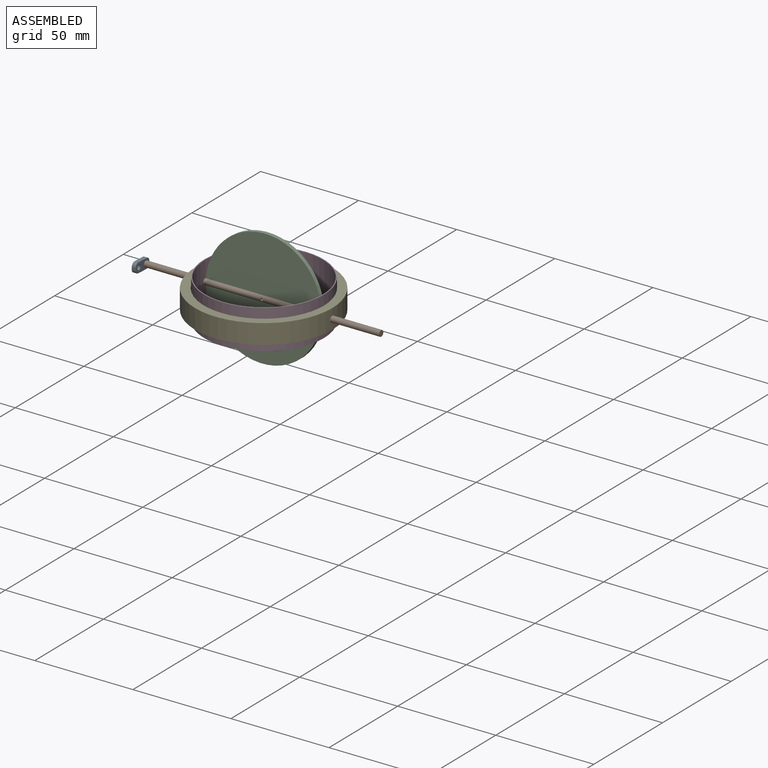
[diagram: assembled view]
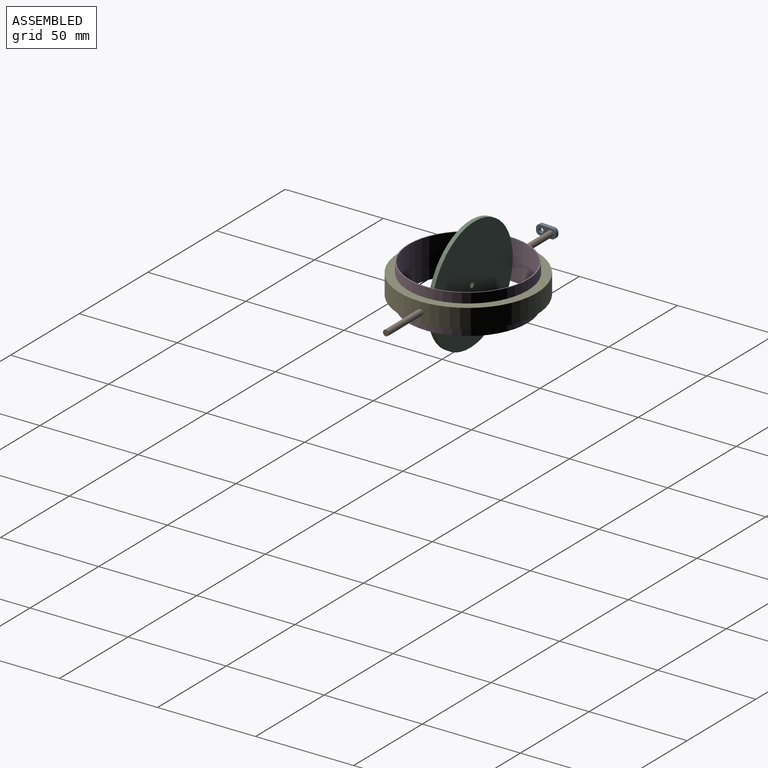
[diagram: assembled view, second angle]
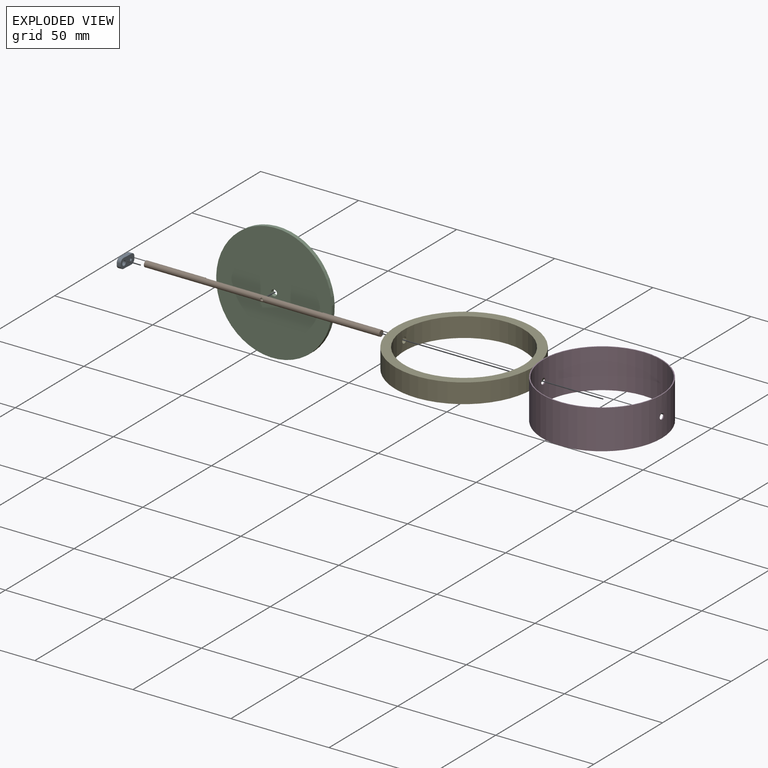
[diagram: exploded view]
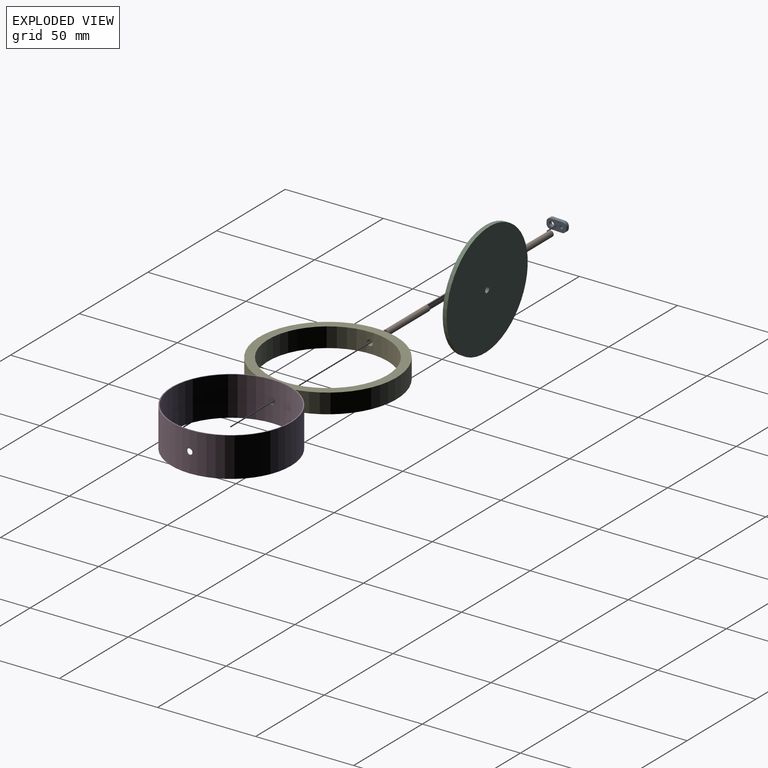
[diagram: exploded view, second angle]
ASSEMBLY  parts=5 mates=4
PART A: 12 faces, bbox 10x5x2 mm
  f0: plane 2x1mm, normal (1,0,0), area 2mm2, adj f1,f9,f10,f11
  f1: cylinder r=2mm len=2mm, axis (0,0,-1), area 6.3mm2, adj f0,f2,f10,f11
  f2: plane 6x2mm, normal (0,1,0), area 12mm2, adj f1,f3,f10,f11
  f3: cylinder r=2mm len=2mm, axis (0,0,-1), area 6.3mm2, adj f2,f4,f10,f11
  f4: plane 2x1mm, normal (-1,0,0), area 2mm2, adj f3,f5,f10,f11
  f5: cylinder r=2mm len=2mm, axis (0,0,-1), area 6.3mm2, adj f4,f6,f10,f11
  f6: plane 6x2mm, normal (0,-1,0), area 12mm2, adj f5,f9,f10,f11
  f7: cylinder r=1.25mm len=2.5mm, axis (0,0,-1), area 15.7mm2, adj f10,f11
  f8: cylinder r=0.75mm len=2mm, axis (0,0,-1), area 9.4mm2, adj f10,f11
  f9: cylinder r=2mm len=2mm, axis (0,0,-1), area 6.3mm2, adj f0,f6,f10,f11
  f10: plane 10x5mm, normal (0,0,1), area 39.9mm2, adj f0,f1,f2,f3,f4,f5,f6,f7
  f11: plane 10x5mm, normal (0,0,-1), area 39.9mm2, adj f0,f1,f2,f3,f4,f5,f6,f7
PART B: 9 faces, bbox 3x3x120 mm
  f0: cylinder r=1.5mm len=120mm, axis (0,0,-1), area 846.4mm2, adj f1,f2,f5,f6,f7,f8
  f1: plane 3x3mm, normal (0,0,1), area 5.3mm2, adj f0,f4
  f2: plane 3x3mm, normal (0,0,-1), area 7.1mm2, adj f0
  f3: cone r=0mm half-angle=59deg, axis (0,0,1), area 2.1mm2, adj f4
  f4: cylinder r=0.75mm len=3mm, axis (0,0,1), area 14.1mm2, adj f1,f3
  f5: plane 60x3mm, normal (1,0,0), area 178.2mm2, adj f0,f6,f7,f8
  f6: plane 3x1.5mm, normal (0,0,1), area 3.5mm2, adj f0,f5
  f7: plane 3x1.5mm, normal (0,0,-1), area 3.5mm2, adj f0,f5
  f8: cylinder r=0.75mm len=1.5mm, axis (1,0,0), area 6.6mm2, adj f0,f5
PART C: 4 faces, bbox 59x59x2 mm
  f0: cylinder r=29.5mm len=59mm, axis (0,0,-1), area 370.7mm2, adj f1,f2
  f1: plane 59x59mm, normal (0,0,1), area 2726.9mm2, adj f0,f3
  f2: plane 59x59mm, normal (0,0,-1), area 2726.9mm2, adj f0,f3
  f3: cylinder r=1.5mm len=3mm, axis (0,0,-1), area 18.8mm2, adj f1,f2
PART D: 6 faces, bbox 61x61x20 mm
  f0: cylinder r=30mm len=60mm, axis (0,0,-1), area 3755.8mm2, adj f2,f3,f4,f5
  f1: cylinder r=30.5mm len=61mm, axis (0,0,-1), area 3818.6mm2, adj f2,f3,f4,f5
  f2: plane 61x61mm, normal (0,0,1), area 95mm2, adj f0,f1
  f3: plane 61x61mm, normal (0,0,-1), area 95mm2, adj f0,f1
  f4: cylinder r=1.5mm len=3mm, axis (1,0,0), area 4.7mm2, adj f0,f1
  f5: cylinder r=1.5mm len=3mm, axis (-1,0,0), area 4.7mm2, adj f0,f1
PART E: 6 faces, bbox 70x70x10 mm
  f0: cylinder r=30.5mm len=61mm, axis (0,0,-1), area 1902.2mm2, adj f2,f3,f4,f5
  f1: cylinder r=35mm len=70mm, axis (0,0,-1), area 2185mm2, adj f2,f3,f4,f5
  f2: plane 70x70mm, normal (0,0,1), area 926mm2, adj f0,f1
  f3: plane 70x70mm, normal (0,0,-1), area 926mm2, adj f0,f1
  f4: cylinder r=1.5mm len=4.54mm, axis (1,0,0), area 42.4mm2, adj f0,f1
  f5: cylinder r=1.5mm len=4.54mm, axis (-1,0,0), area 42.4mm2, adj f0,f1
PLACE A rot(axis=(0.57,0.59,0.57),118.7deg) t=(-143.39,-7.37,-4.56)mm
PLACE B rot(axis=(-0.58,-0.56,0.58),121.3deg) t=(-81.39,-38.56,12.62)mm
PLACE C rot(axis=(0,-0.72,-0.69),180deg) t=(-81.39,-38.56,12.62)mm
PLACE D t=(-81.16,-38.56,12.62)mm fixed
PLACE E t=(-81.37,-38.56,12.62)mm fixed
MATE revolute B.f0 <-> E.f4  axis (1,0,0) through (-141.39,-38.56,12.62)mm
MATE fastened D.f4 <-> E.f4  axis (-1,0,0) through (-50.93,-38.56,12.62)mm
MATE fastened A.f8 <-> B.f3  axis (1,0,0) through (-141.39,-38.56,12.62)mm
MATE fastened B.f8 <-> C.f3  axis (0,1,-0.04) through (-81.39,-38.56,12.62)mm
